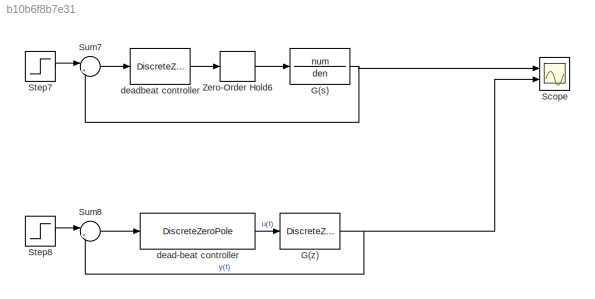
MODEL slx_b10b6f8b7e31
KIND model
CONFIG AbsTol = auto
CONFIG EnableMultiTasking = off
CONFIG FixedStep = auto
CONFIG MaxStep = auto
CONFIG MinStep = auto
CONFIG RelTol = 1e-3
CONFIG SampleTimeConstraint = Unconstrained
CONFIG Solver = VariableStepAuto
CONFIG SolverName = VariableStepAuto
CONFIG StartTime = 0.0
CONFIG StopTime = 100
BLOCK [TransferFcn] G(s)
  Denominator = den
  Numerator = num
BLOCK [DiscreteZeroPole] G(z)
  Gain = -0.00046
  Poles = [1  0.7985 0.4356]
  SampleTime = 9
  Zeros = [-2.905  -0.2032]
BLOCK [Scope] Scope
  Floating = off
  NumInputPorts = 2
  Ports = [2]
  ScopeSpecificationString = Simulink.scopes.TimeScopeBlockCfg('CurrentConfiguration', extmgr.ConfigurationSet(extmgr.Configuration('Core','General UI',true),extmgr.Configuration('Core','Source UI',true),extmgr.Configuration('Sources','WiredSimulink',true),extmgr.Configuration('Visuals','Time Domain',true,'SerializedDisplays',{struct('MinYLimReal','-0.125','MaxYLimReal','1.12503','YLabelReal','','MinYLimMag','0.00000','MaxYLi...<+1425ch>
BLOCK [Step] Step7
  SampleTime = 0
  Time = 0
BLOCK [Step] Step8
  SampleTime = 0
  Time = 0
BLOCK [Sum] Sum7
  IconShape = round
  InputSameDT = off
  Inputs = |+-
  OutDataTypeStr = Inherit: Inherit via internal rule
  Ports = [2, 1]
  SaturateOnIntegerOverflow = off
BLOCK [Sum] Sum8
  IconShape = round
  InputSameDT = off
  Inputs = |+-
  OutDataTypeStr = Inherit: Inherit via internal rule
  Ports = [2, 1]
  SaturateOnIntegerOverflow = off
BLOCK [ZeroOrderHold] Zero-Order Hold6
  SampleTime = 9
BLOCK [DiscreteZeroPole] dead-beat controller
  Gain = -0.2128/0.00046
  Poles = [-0.5647 -0.2225]
  SampleTime = 9
  Zeros = [0.7985 0.4356]
BLOCK [DiscreteZeroPole] deadbeat controller 
  Gain = -0.2128/0.00046
  Poles = [-0.5647 -0.2225]
  SampleTime = 9
  Zeros = [0.7985 0.4356]
NET G(s):1 -> Scope:1, Sum7:2
NET G(z):1 -> Scope:2, Sum8:2
LINE Step7:1 -> Sum7:1
LINE Step8:1 -> Sum8:1
LINE Sum7:1 -> deadbeat controller :1
LINE Sum8:1 -> dead-beat controller:1
LINE Zero-Order Hold6:1 -> G(s):1
LINE dead-beat controller:1 -> G(z):1
LINE deadbeat controller :1 -> Zero-Order Hold6:1
note: NET lines group one-source signal fan-out (src -> all destinations, sorted); 1:1 wires keep LINE
